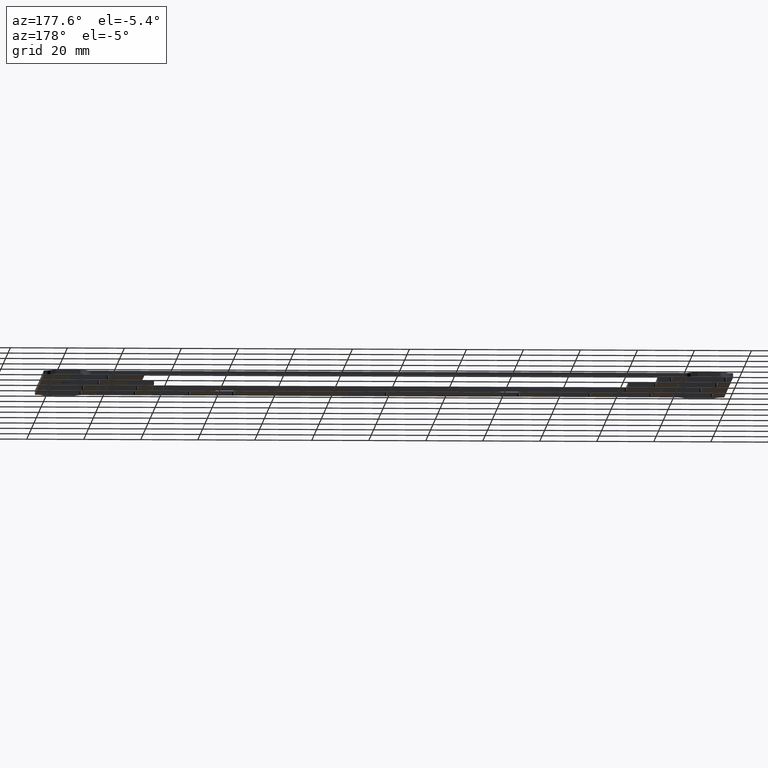
[diagram: clean part render]
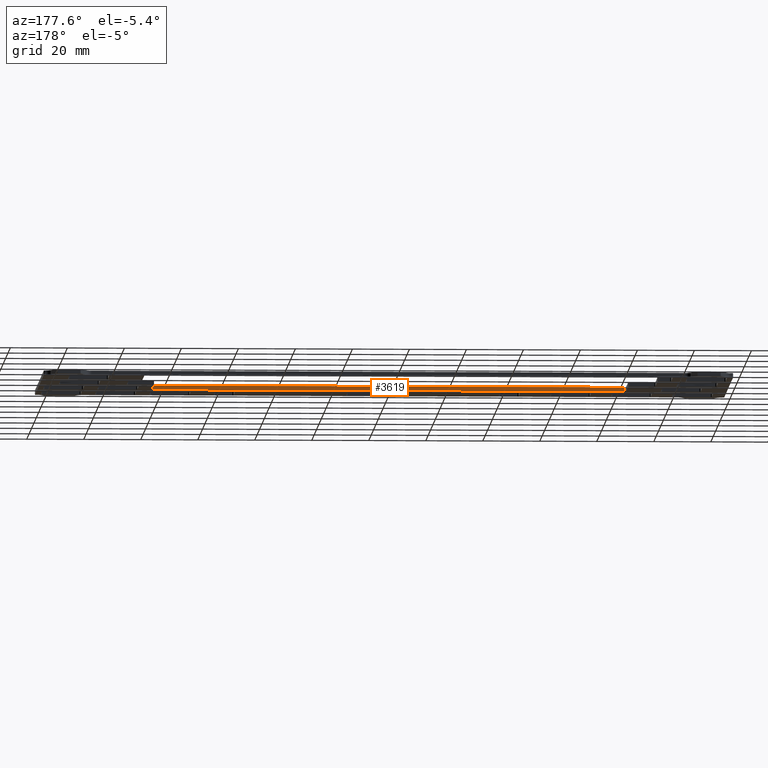
[diagram: same view with one face highlighted and labeled with its STEP entity id]
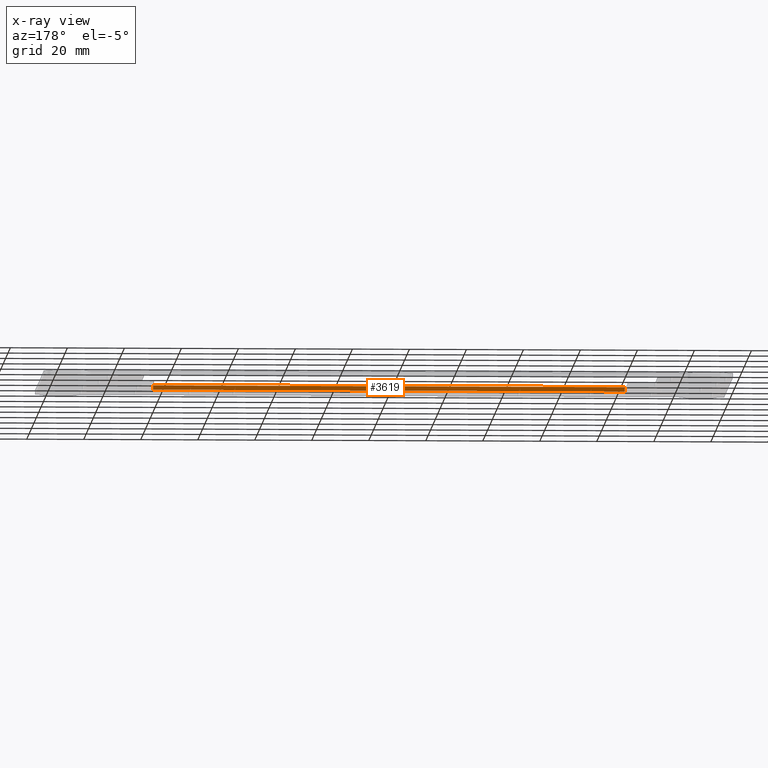
[diagram: x-ray of the same camera — body ghosted, the highlighted face saturated]
A machine part, auxiliary view. The second image highlights one B-rep face of the part: STEP entity #3619.
The next image is the same camera in x-ray: the body ghosted, the highlighted face saturated — about 0% of this face is hidden behind the body in this view.
In plain terms, the highlighted planar face has unit normal (-0, 1, 0).
Its self-contained STEP definition (entity closure, byte-faithful):
#399=FACE_OUTER_BOUND('',#598,.T.);
#598=EDGE_LOOP('',(#2911,#2912,#2913,#2914));
#831=LINE('',#5570,#1203);
#946=LINE('',#5896,#1318);
#947=LINE('',#5897,#1319);
#948=LINE('',#5898,#1320);
#1203=VECTOR('',#4429,10.);
#1318=VECTOR('',#4770,10.);
#1319=VECTOR('',#4771,10.);
#1320=VECTOR('',#4772,10.);
#1623=VERTEX_POINT('',#5568);
#1624=VERTEX_POINT('',#5569);
#1721=VERTEX_POINT('',#5894);
#1722=VERTEX_POINT('',#5895);
#2015=EDGE_CURVE('',#1623,#1624,#831,.T.);
#2178=EDGE_CURVE('',#1721,#1722,#946,.T.);
#2179=EDGE_CURVE('',#1721,#1624,#947,.T.);
#2180=EDGE_CURVE('',#1722,#1623,#948,.T.);
#2911=ORIENTED_EDGE('',*,*,#2178,.F.);
#2912=ORIENTED_EDGE('',*,*,#2179,.T.);
#2913=ORIENTED_EDGE('',*,*,#2015,.F.);
#2914=ORIENTED_EDGE('',*,*,#2180,.F.);
#3477=PLANE('',#3943);
#3619=ADVANCED_FACE('',(#399),#3477,.T.);
#3943=AXIS2_PLACEMENT_3D('',#5893,#4768,#4769);
#4429=DIRECTION('',(-1.,-2.04964250700029E-15,0.));
#4768=DIRECTION('center_axis',(-1.36642833800019E-15,1.,0.));
#4769=DIRECTION('ref_axis',(-1.,-1.36642833800019E-15,0.));
#4770=DIRECTION('',(1.,2.04964250700029E-15,0.));
#4771=DIRECTION('',(0.,0.,1.));
#4772=DIRECTION('',(0.,0.,1.));
#5568=CARTESIAN_POINT('',(201.7625,-54.625,1.5));
#5569=CARTESIAN_POINT('',(36.3625,-54.625,1.5));
#5570=CARTESIAN_POINT('',(188.7625,-54.625,1.5));
#5893=CARTESIAN_POINT('Origin',(182.7125,-54.625,0.));
#5894=CARTESIAN_POINT('',(36.3625,-54.625,0.));
#5895=CARTESIAN_POINT('',(201.7625,-54.625,0.));
#5896=CARTESIAN_POINT('',(188.7625,-54.625,0.));
#5897=CARTESIAN_POINT('',(36.3625,-54.625,0.));
#5898=CARTESIAN_POINT('',(201.7625,-54.625,0.));